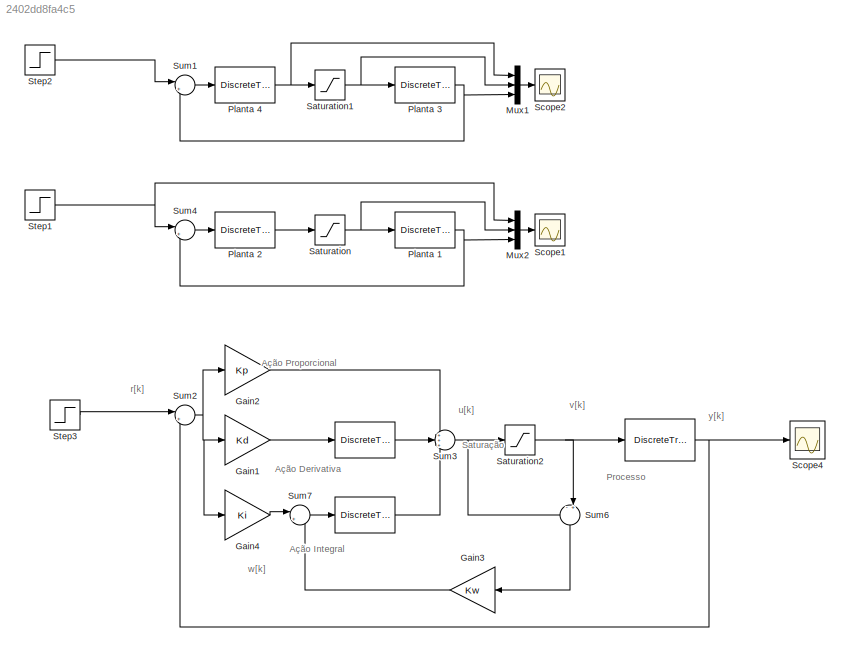
MODEL slx_2402dd8fa4c5
KIND model
CONFIG AbsTol = auto
CONFIG EnableMultiTasking = off
CONFIG FixedStep = auto
CONFIG MaxStep = auto
CONFIG MinStep = auto
CONFIG RelTol = 1e-3
CONFIG SampleTimeConstraint = Unconstrained
CONFIG Solver = VariableStepAuto
CONFIG SolverName = VariableStepAuto
CONFIG StartTime = 0.0
CONFIG StopTime = 1000
BLOCK [DiscreteTransferFcn]  
  Denominator = [1 -1]
  InputPortMap = u0
  Numerator = [1 0]
  Ports = [1, 1]
  SampleTime = 0.5
BLOCK [DiscreteTransferFcn]             
  Denominator = [1 0]
  InputPortMap = u0
  Numerator = [1 -1]
  Ports = [1, 1]
  SampleTime = 0.5
BLOCK [Gain] Gain1
  Gain = Kd
  OutDataTypeStr = Inherit: Inherit via internal rule
  ParamDataTypeStr = Inherit: Inherit via internal rule
  SaturateOnIntegerOverflow = off
BLOCK [Gain] Gain2
  Gain = Kp
  OutDataTypeStr = Inherit: Inherit via internal rule
  ParamDataTypeStr = Inherit: Inherit via internal rule
  SaturateOnIntegerOverflow = off
BLOCK [Gain] Gain3
  Gain = Kw
  OutDataTypeStr = Inherit: Inherit via internal rule
  ParamDataTypeStr = Inherit: Inherit via internal rule
  SaturateOnIntegerOverflow = off
BLOCK [Gain] Gain4
  Gain = Ki
  OutDataTypeStr = Inherit: Inherit via internal rule
  ParamDataTypeStr = Inherit: Inherit via internal rule
  SaturateOnIntegerOverflow = off
BLOCK [Mux] Mux1
  Commented = on
  DisplayOption = bar
  Inputs = 3
  Ports = [3, 1]
BLOCK [Mux] Mux2
  Commented = on
  DisplayOption = bar
  Inputs = 3
  Ports = [3, 1]
BLOCK [DiscreteTransferFcn] Planta 1
  Commented = on
  Denominator = deng
  InputPortMap = u0
  Numerator = numg
  Ports = [1, 1]
  SampleTime = 0.5
BLOCK [DiscreteTransferFcn] Planta 2
  Commented = on
  Denominator = denC
  InputPortMap = u0
  Numerator = numC
  Ports = [1, 1]
  SampleTime = 0.5
BLOCK [DiscreteTransferFcn] Planta 3
  Commented = on
  Denominator = dengR
  InputPortMap = u0
  Numerator = numgR
  Ports = [1, 1]
  SampleTime = 0.5
BLOCK [DiscreteTransferFcn] Planta 4
  Commented = on
  Denominator = denC
  InputPortMap = u0
  Numerator = numC
  Ports = [1, 1]
  SampleTime = 0.5
BLOCK [Saturate] Saturation
  Commented = on
  InputPortMap = u0
  LowerLimit = 0
  Ports = [1, 1]
  UpperLimit = 10
BLOCK [Saturate] Saturation1
  Commented = on
  InputPortMap = u0
  LowerLimit = 0
  Ports = [1, 1]
  UpperLimit = 10
BLOCK [Saturate] Saturation2
  InputPortMap = u0
  LowerLimit = 0
  Ports = [1, 1]
  UpperLimit = 10
BLOCK [Scope] Scope1
  Commented = on
  Floating = off
  NumInputPorts = 1
  Ports = [1]
  ScopeSpecificationString = Simulink.scopes.TimeScopeBlockCfg('CurrentConfiguration', extmgr.ConfigurationSet(extmgr.Configuration('Core','General UI',true),extmgr.Configuration('Core','Source UI',true),extmgr.Configuration('Sources','WiredSimulink',true,'DataLoggingVariableName','ScopeData1'),extmgr.Configuration('Visuals','Time Domain',true,'SerializedDisplays',{struct('MinYLimReal','-1.25','MaxYLimReal','11.25','YLabelRea...<+1447ch>
BLOCK [Scope] Scope2
  Commented = on
  Floating = off
  NumInputPorts = 1
  Ports = [1]
  ScopeSpecificationString = Simulink.scopes.TimeScopeBlockCfg('CurrentConfiguration', extmgr.ConfigurationSet(extmgr.Configuration('Core','General UI',true),extmgr.Configuration('Core','Source UI',true),extmgr.Configuration('Sources','WiredSimulink',true,'DataLoggingVariableName','ScopeData1'),extmgr.Configuration('Visuals','Time Domain',true,'SerializedDisplays',{struct('MinYLimReal','-8.27234','MaxYLimReal','74.45104','YLa...<+1469ch>
BLOCK [Scope] Scope4
  Floating = off
  NumInputPorts = 1
  Ports = [1]
  ScopeSpecificationString = Simulink.scopes.TimeScopeBlockCfg('CurrentConfiguration', extmgr.ConfigurationSet(extmgr.Configuration('Core','General UI',true),extmgr.Configuration('Core','Source UI',true),extmgr.Configuration('Sources','WiredSimulink',true,'DataLoggingVariableName','ScopeData1'),extmgr.Configuration('Visuals','Time Domain',true,'SerializedDisplays',{struct('MinYLimReal','-0.63584','MaxYLimReal','5.62139','YLab...<+1461ch>
BLOCK [Step] Step1
  After = 5
  Commented = on
  SampleTime = 0
  Time = 0
BLOCK [Step] Step2
  After = 5
  Commented = on
  SampleTime = 0
  Time = 0
BLOCK [Step] Step3
  After = 7.5
  SampleTime = 0
  Time = 0
BLOCK [Sum] Sum1
  Commented = on
  IconShape = round
  InputSameDT = off
  Inputs = |+-
  OutDataTypeStr = Inherit: Inherit via internal rule
  Ports = [2, 1]
  SaturateOnIntegerOverflow = off
BLOCK [Sum] Sum2
  IconShape = round
  InputSameDT = off
  Inputs = |+-
  OutDataTypeStr = Inherit: Inherit via internal rule
  Ports = [2, 1]
  SaturateOnIntegerOverflow = off
BLOCK [Sum] Sum3
  IconShape = round
  InputSameDT = off
  Inputs = +++
  OutDataTypeStr = Inherit: Inherit via internal rule
  Ports = [3, 1]
  SaturateOnIntegerOverflow = off
BLOCK [Sum] Sum4
  Commented = on
  IconShape = round
  InputSameDT = off
  Inputs = |+-
  OutDataTypeStr = Inherit: Inherit via internal rule
  Ports = [2, 1]
  SaturateOnIntegerOverflow = off
BLOCK [Sum] Sum6
  IconShape = round
  InputSameDT = off
  Inputs = -+|
  OutDataTypeStr = Inherit: Inherit via internal rule
  Ports = [2, 1]
  SaturateOnIntegerOverflow = off
BLOCK [Sum] Sum7
  IconShape = round
  InputSameDT = off
  Inputs = |++
  OutDataTypeStr = Inherit: Inherit via internal rule
  Ports = [2, 1]
  SaturateOnIntegerOverflow = off
ANNOTATION (root): Ação Derivativa
ANNOTATION (root): Ação Integral
ANNOTATION (root): Ação Proporcional
ANNOTATION (root): Processo
ANNOTATION (root): Saturação
ANNOTATION (root): r[k]
ANNOTATION (root): u[k]
ANNOTATION (root): v[k]
ANNOTATION (root): w[k]
ANNOTATION (root): y[k]
LINE             :1 -> Sum3:2
NET  :1 -> Scope4:1, Sum2:2, Sum3:3
LINE Gain1:1 ->             :1
LINE Gain2:1 -> Sum3:1
LINE Gain3:1 -> Sum7:2
LINE Gain4:1 -> Sum7:1
LINE Mux1:1 -> Scope2:1
LINE Mux2:1 -> Scope1:1
NET Planta 1:1 -> Mux2:3, Sum4:2
LINE Planta 2:1 -> Saturation:1
NET Planta 3:1 -> Mux1:3, Sum1:2
NET Planta 4:1 -> Mux1:1, Saturation1:1
NET Saturation1:1 -> Mux1:2, Planta 3:1
NET Saturation2:1 ->  :1, Sum6:2
NET Saturation:1 -> Mux2:2, Planta 1:1
NET Step1:1 -> Mux2:1, Sum4:1
LINE Step2:1 -> Sum1:1
LINE Step3:1 -> Sum2:1
LINE Sum1:1 -> Planta 4:1
NET Sum2:1 -> Gain1:1, Gain2:1, Gain4:1
NET Sum3:1 -> Saturation2:1, Sum6:1
LINE Sum4:1 -> Planta 2:1
LINE Sum6:1 -> Gain3:1
LINE Sum7:1 ->  :1
note: NET lines group one-source signal fan-out (src -> all destinations, sorted); 1:1 wires keep LINE
